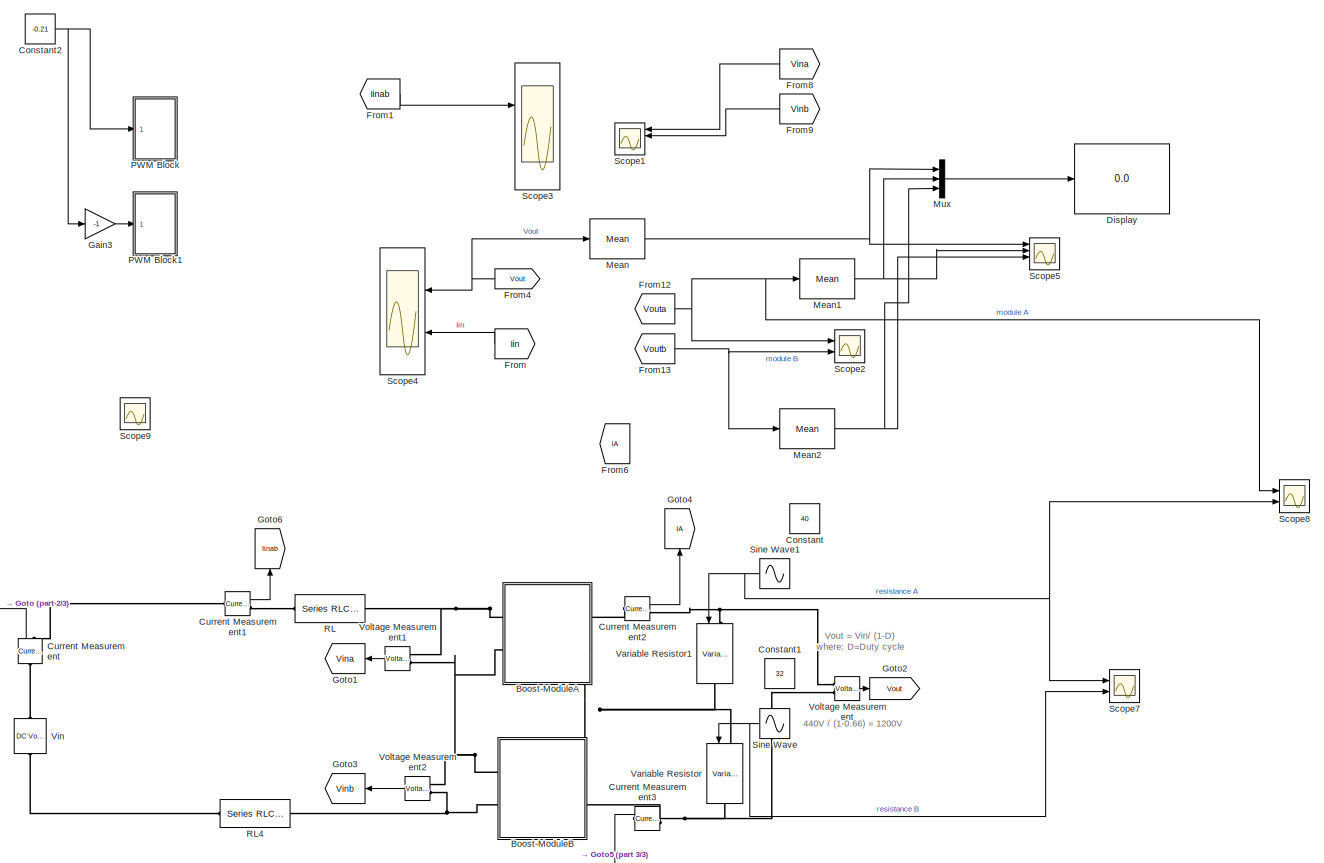
[diagram: root canvas - part 1/3, center side, full height]
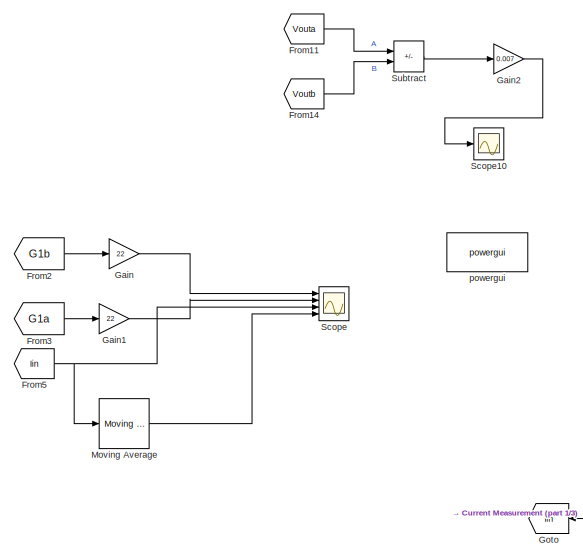
[diagram: root canvas - part 2/3, middle left region]
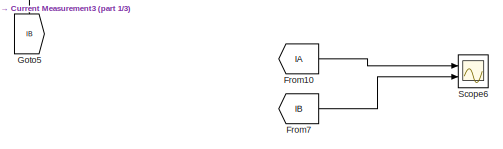
[diagram: root canvas - part 3/3, bottom right region]
MODEL slx_f2319887cfd7
KIND model
CONFIG AbsTol = auto
CONFIG EnableMultiTasking = on
CONFIG FixedStep = sampleTime
CONFIG InitFcn = unbalance_boost
CONFIG MaxStep = 1e-4
CONFIG MinStep = auto
CONFIG RelTol = 1e-4
CONFIG SampleTimeConstraint = Unconstrained
CONFIG SolverName = FixedStepDiscrete
CONFIG StartTime = 0.0
CONFIG StopTime = 0.2
WORKSPACE source: mxarray member
WORKSPACE Phase1 = 0
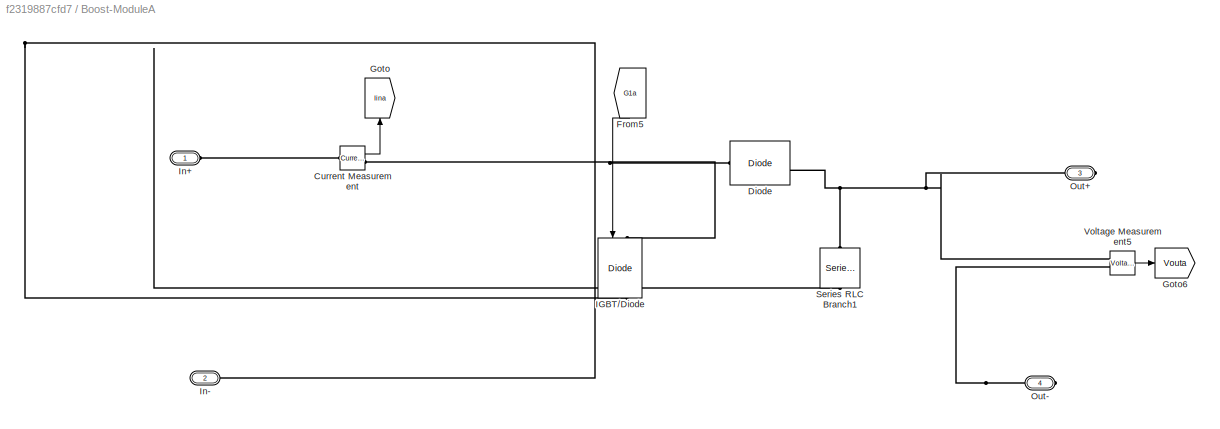
BLOCK [SubSystem] Boost-ModuleA
  Ports = [0, 0, 0, 0, 0, 2, 2]
  RequestExecContextInheritance = off
BLOCK [Reference] Boost-ModuleA/Current Measurement  REF=spsCurrentMeasurementLib/Current Measurement
  Ports = [0, 1, 0, 0, 0, 1, 1]
  SourceBlock = spsCurrentMeasurementLib/Current Measurement
  SourceProductBaseCode = PS
  SourceType = Current Measurement
  UserDataPersistent = on
BLOCK [Reference] Boost-ModuleA/Diode  REF=spsDiodeLib/Diode
  Ports = [0, 1, 0, 0, 0, 1, 1]
  SourceBlock = spsDiodeLib/Diode
  SourceProductBaseCode = PS
  SourceType = Diode
BLOCK [From] Boost-ModuleA/From5
  GotoTag = G1a
  NameLocation = left
  TagVisibility = global
BLOCK [Goto] Boost-ModuleA/Goto
  GotoTag = Iina
  NameLocation = right
  TagVisibility = global
BLOCK [Goto] Boost-ModuleA/Goto6
  GotoTag = Vouta
  NameLocation = top
  TagVisibility = global
BLOCK [Reference] Boost-ModuleA/IGBT//Diode  REF=spsIGBTDiodeLib/IGBT//Diode
  NameLocation = left
  Ports = [1, 1, 0, 0, 0, 1, 1]
  SourceBlock = spsIGBTDiodeLib/IGBT//Diode
  SourceProductBaseCode = PS
  SourceType = IGBT/Diode
BLOCK [PMIOPort] Boost-ModuleA/In+
  Side = Left
BLOCK [PMIOPort] Boost-ModuleA/In-
  Port = 2
  Side = Left
BLOCK [PMIOPort] Boost-ModuleA/Out+
  NameLocation = top
  Port = 3
  Side = Right
BLOCK [PMIOPort] Boost-ModuleA/Out-
  NameLocation = top
  Port = 4
  Side = Right
BLOCK [Reference] Boost-ModuleA/Series RLC Branch1  REF=spsSeriesRLCBranchLib/Series RLC Branch
  NameLocation = left
  Ports = [0, 0, 0, 0, 0, 1, 1]
  SourceBlock = spsSeriesRLCBranchLib/Series RLC Branch
  SourceProductBaseCode = PS
  SourceType = Series RLC Branch
BLOCK [Reference] Boost-ModuleA/Voltage Measurement5  REF=spsVoltageMeasurementLib/Voltage Measurement
  Ports = [0, 1, 0, 0, 0, 2]
  SourceBlock = spsVoltageMeasurementLib/Voltage Measurement
  SourceProductBaseCode = PS
  SourceType = Voltage Measurement
  UserDataPersistent = on
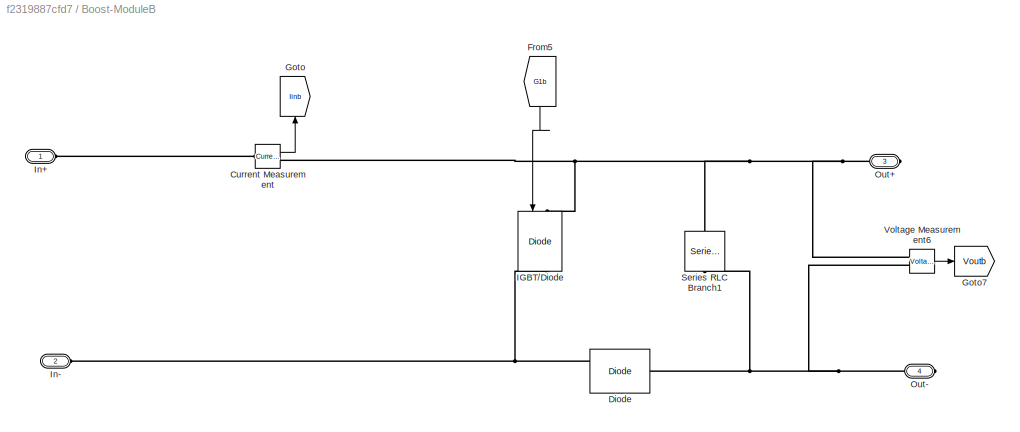
BLOCK [SubSystem] Boost-ModuleB
  Ports = [0, 0, 0, 0, 0, 2, 2]
  RequestExecContextInheritance = off
BLOCK [Reference] Boost-ModuleB/Current Measurement  REF=spsCurrentMeasurementLib/Current Measurement
  Ports = [0, 1, 0, 0, 0, 1, 1]
  SourceBlock = spsCurrentMeasurementLib/Current Measurement
  SourceProductBaseCode = PS
  SourceType = Current Measurement
  UserDataPersistent = on
BLOCK [Reference] Boost-ModuleB/Diode  REF=spsDiodeLib/Diode
  NameLocation = top
  Ports = [0, 1, 0, 0, 0, 1, 1]
  SourceBlock = spsDiodeLib/Diode
  SourceProductBaseCode = PS
  SourceType = Diode
BLOCK [From] Boost-ModuleB/From5
  GotoTag = G1b
  NameLocation = left
  TagVisibility = global
BLOCK [Goto] Boost-ModuleB/Goto
  GotoTag = Iinb
  NameLocation = right
  TagVisibility = global
BLOCK [Goto] Boost-ModuleB/Goto7
  GotoTag = Voutb
  NameLocation = top
  TagVisibility = global
BLOCK [Reference] Boost-ModuleB/IGBT//Diode  REF=spsIGBTDiodeLib/IGBT//Diode
  NameLocation = left
  Ports = [1, 1, 0, 0, 0, 1, 1]
  SourceBlock = spsIGBTDiodeLib/IGBT//Diode
  SourceProductBaseCode = PS
  SourceType = IGBT/Diode
BLOCK [PMIOPort] Boost-ModuleB/In+
  Side = Left
BLOCK [PMIOPort] Boost-ModuleB/In-
  Port = 2
  Side = Left
BLOCK [PMIOPort] Boost-ModuleB/Out+
  NameLocation = top
  Port = 3
  Side = Right
BLOCK [PMIOPort] Boost-ModuleB/Out-
  NameLocation = top
  Port = 4
  Side = Right
BLOCK [Reference] Boost-ModuleB/Series RLC Branch1  REF=spsSeriesRLCBranchLib/Series RLC Branch
  NameLocation = left
  Ports = [0, 0, 0, 0, 0, 1, 1]
  SourceBlock = spsSeriesRLCBranchLib/Series RLC Branch
  SourceProductBaseCode = PS
  SourceType = Series RLC Branch
BLOCK [Reference] Boost-ModuleB/Voltage Measurement6  REF=spsVoltageMeasurementLib/Voltage Measurement
  Ports = [0, 1, 0, 0, 0, 2]
  SourceBlock = spsVoltageMeasurementLib/Voltage Measurement
  SourceProductBaseCode = PS
  SourceType = Voltage Measurement
  UserDataPersistent = on
BLOCK [Constant] Constant
  NameLocation = top
  Value = 40
BLOCK [Constant] Constant1
  NameLocation = top
  Value = 32
BLOCK [Constant] Constant2
  Value = -0.21
BLOCK [Reference] Current Measurement  REF=spsCurrentMeasurementLib/Current Measurement
  NameLocation = right
  Ports = [0, 1, 0, 0, 0, 1, 1]
  SourceBlock = spsCurrentMeasurementLib/Current Measurement
  SourceProductBaseCode = PS
  SourceType = Current Measurement
  UserDataPersistent = on
BLOCK [Reference] Current Measurement1  REF=spsCurrentMeasurementLib/Current Measurement
  Ports = [0, 1, 0, 0, 0, 1, 1]
  SourceBlock = spsCurrentMeasurementLib/Current Measurement
  SourceProductBaseCode = PS
  SourceType = Current Measurement
  UserDataPersistent = on
BLOCK [Reference] Current Measurement2  REF=spsCurrentMeasurementLib/Current Measurement
  Ports = [0, 1, 0, 0, 0, 1, 1]
  SourceBlock = spsCurrentMeasurementLib/Current Measurement
  SourceProductBaseCode = PS
  SourceType = Current Measurement
  UserDataPersistent = on
BLOCK [Reference] Current Measurement3  REF=spsCurrentMeasurementLib/Current Measurement
  NameLocation = top
  Ports = [0, 1, 0, 0, 0, 1, 1]
  SourceBlock = spsCurrentMeasurementLib/Current Measurement
  SourceProductBaseCode = PS
  SourceType = Current Measurement
  UserDataPersistent = on
BLOCK [Display] Display
  Decimation = 1
  Ports = [1]
BLOCK [From] From
  GotoTag = Iin
BLOCK [From] From1
  GotoTag = Iinab
BLOCK [From] From10
  GotoTag = IA
BLOCK [From] From11
  GotoTag = Vouta
  TagVisibility = global
BLOCK [From] From12
  GotoTag = Vouta
  TagVisibility = global
BLOCK [From] From13
  GotoTag = Voutb
  TagVisibility = global
BLOCK [From] From14
  GotoTag = Voutb
  TagVisibility = global
BLOCK [From] From2
  GotoTag = G1b
  TagVisibility = global
BLOCK [From] From3
  GotoTag = G1a
  TagVisibility = global
BLOCK [From] From4
  GotoTag = Vout
  NameLocation = top
BLOCK [From] From5
  GotoTag = Iin
  NameLocation = top
BLOCK [From] From6
  GotoTag = IA
  NameLocation = right
BLOCK [From] From7
  GotoTag = IB
BLOCK [From] From8
  GotoTag = Vina
BLOCK [From] From9
  GotoTag = Vinb
BLOCK [Gain] Gain
  Gain = 22
BLOCK [Gain] Gain1
  Gain = 22
BLOCK [Gain] Gain2
  Gain = 0.007
BLOCK [Gain] Gain3
  Gain = -1
BLOCK [Goto] Goto
  GotoTag = Iin
  NameLocation = top
BLOCK [Goto] Goto1
  GotoTag = Vina
  NameLocation = top
BLOCK [Goto] Goto2
  GotoTag = Vout
BLOCK [Goto] Goto3
  GotoTag = Vinb
  NameLocation = top
BLOCK [Goto] Goto4
  GotoTag = IA
  NameLocation = right
BLOCK [Goto] Goto5
  GotoTag = IB
  NameLocation = left
BLOCK [Goto] Goto6
  GotoTag = Iinab
  NameLocation = right
BLOCK [Reference] Mean  REF=dspstat3/Mean
  Ports = [1, 1]
  SourceBlock = dspstat3/Mean
  SourceProductBaseCode = DS
  SourceType = Mean
  UserDataPersistent = on
BLOCK [Reference] Mean1  REF=dspstat3/Mean
  Ports = [1, 1]
  SourceBlock = dspstat3/Mean
  SourceProductBaseCode = DS
  SourceType = Mean
  UserDataPersistent = on
BLOCK [Reference] Mean2  REF=dspstat3/Mean
  Ports = [1, 1]
  SourceBlock = dspstat3/Mean
  SourceProductBaseCode = DS
  SourceType = Mean
  UserDataPersistent = on
BLOCK [Reference] Moving Average  REF=dspstat3/Moving
Average
  Ports = [1, 1]
  SourceBlock = dspstat3/Moving\nAverage
  SourceProductBaseCode = DS
  SourceType = dsp.simulink.MovingAverage
BLOCK [Mux] Mux
  DisplayOption = bar
  Inputs = 3
  Ports = [3, 1]
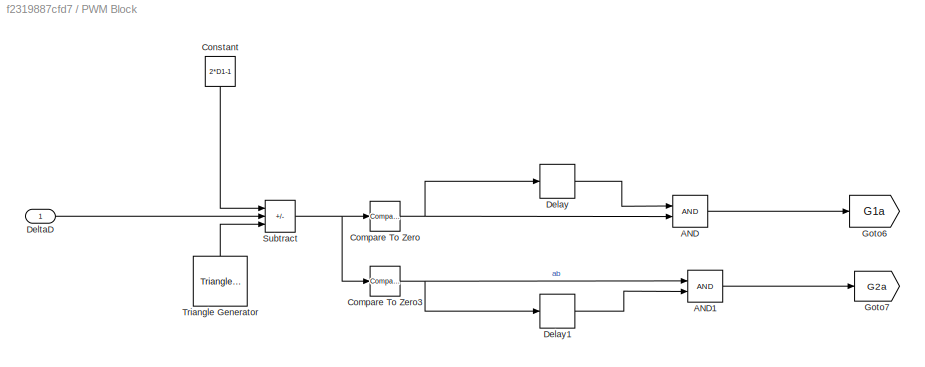
BLOCK [SubSystem] PWM Block
  Ports = [1]
  RequestExecContextInheritance = off
BLOCK [Logic] PWM Block/AND
  AllPortsSameDT = off
  IconShape = distinctive
  OutDataTypeStr = boolean
  Ports = [2, 1]
BLOCK [Logic] PWM Block/AND1
  AllPortsSameDT = off
  IconShape = distinctive
  OutDataTypeStr = boolean
  Ports = [2, 1]
BLOCK [Reference] PWM Block/Compare To Zero  REF=simulink/Logic and Bit
Operations/Compare
To Zero
  Ports = [1, 1]
  SourceBlock = simulink/Logic and Bit\nOperations/Compare\nTo Zero
  SourceProductBaseCode = SL
  SourceType = Compare To Zero
BLOCK [Reference] PWM Block/Compare To Zero3  REF=simulink/Logic and Bit
Operations/Compare
To Zero
  Ports = [1, 1]
  SourceBlock = simulink/Logic and Bit\nOperations/Compare\nTo Zero
  SourceProductBaseCode = SL
  SourceType = Compare To Zero
BLOCK [Constant] PWM Block/Constant
  NameLocation = left
  Value = 2*D1-1
BLOCK [Delay] PWM Block/Delay
  InputPortMap = u0
  Ports = [1, 1]
BLOCK [Delay] PWM Block/Delay1
  InputPortMap = u0
  Ports = [1, 1]
BLOCK [Inport] PWM Block/DeltaD
BLOCK [Goto] PWM Block/Goto6
  GotoTag = G1a
  TagVisibility = global
BLOCK [Goto] PWM Block/Goto7
  GotoTag = G2a
  TagVisibility = global
BLOCK [Sum] PWM Block/Subtract
  IconShape = rectangular
  Inputs = ++-
  Ports = [3, 1]
BLOCK [Reference] PWM Block/Triangle Generator  REF=spsTriangleGeneratorLib/Triangle
Generator
  NameLocation = right
  Ports = [0, 1]
  SourceBlock = spsTriangleGeneratorLib/Triangle\nGenerator
  SourceProductBaseCode = PS
  SourceType = Triangle Generator
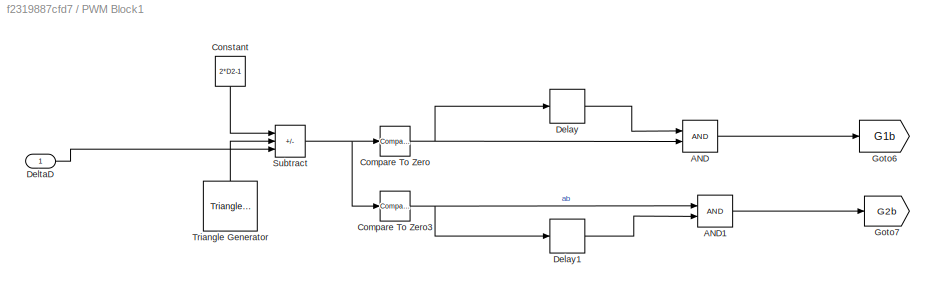
BLOCK [SubSystem] PWM Block1
  Ports = [1]
  RequestExecContextInheritance = off
BLOCK [Logic] PWM Block1/AND
  AllPortsSameDT = off
  IconShape = distinctive
  OutDataTypeStr = boolean
  Ports = [2, 1]
BLOCK [Logic] PWM Block1/AND1
  AllPortsSameDT = off
  IconShape = distinctive
  OutDataTypeStr = boolean
  Ports = [2, 1]
BLOCK [Reference] PWM Block1/Compare To Zero  REF=simulink/Logic and Bit
Operations/Compare
To Zero
  Ports = [1, 1]
  SourceBlock = simulink/Logic and Bit\nOperations/Compare\nTo Zero
  SourceProductBaseCode = SL
  SourceType = Compare To Zero
BLOCK [Reference] PWM Block1/Compare To Zero3  REF=simulink/Logic and Bit
Operations/Compare
To Zero
  Ports = [1, 1]
  SourceBlock = simulink/Logic and Bit\nOperations/Compare\nTo Zero
  SourceProductBaseCode = SL
  SourceType = Compare To Zero
BLOCK [Constant] PWM Block1/Constant
  NameLocation = left
  Value = 2*D2-1
BLOCK [Delay] PWM Block1/Delay
  InputPortMap = u0
  Ports = [1, 1]
BLOCK [Delay] PWM Block1/Delay1
  InputPortMap = u0
  Ports = [1, 1]
BLOCK [Inport] PWM Block1/DeltaD
BLOCK [Goto] PWM Block1/Goto6
  GotoTag = G1b
  TagVisibility = global
BLOCK [Goto] PWM Block1/Goto7
  GotoTag = G2b
  TagVisibility = global
BLOCK [Sum] PWM Block1/Subtract
  IconShape = rectangular
  Inputs = +-+
  Ports = [3, 1]
BLOCK [Reference] PWM Block1/Triangle Generator  REF=spsTriangleGeneratorLib/Triangle
Generator
  NameLocation = right
  Ports = [0, 1]
  SourceBlock = spsTriangleGeneratorLib/Triangle\nGenerator
  SourceProductBaseCode = PS
  SourceType = Triangle Generator
BLOCK [Reference] RL  REF=spsSeriesRLCBranchLib/Series RLC Branch
  Ports = [0, 0, 0, 0, 0, 1, 1]
  SourceBlock = spsSeriesRLCBranchLib/Series RLC Branch
  SourceProductBaseCode = PS
  SourceType = Series RLC Branch
BLOCK [Reference] RL4  REF=spsSeriesRLCBranchLib/Series RLC Branch
  Ports = [0, 0, 0, 0, 0, 1, 1]
  SourceBlock = spsSeriesRLCBranchLib/Series RLC Branch
  SourceProductBaseCode = PS
  SourceType = Series RLC Branch
BLOCK [Scope] Scope
  Floating = off
  NumInputPorts = 4
  Ports = [4]
  ScopeSpecificationString = Simulink.scopes.TimeScopeBlockCfg('CurrentConfiguration', extmgr.ConfigurationSet(extmgr.Configuration('Core','General UI',true,'FigureColor',[1 1 1]),extmgr.Configuration('Core','Source UI',true),extmgr.Configuration('Sources','WiredSimulink',true,'DataLoggingVariableName','ScopeData2'),extmgr.Configuration('Visuals','Time Domain',true,'SerializedDisplays',{struct('MinYLimReal','18.39239','MaxYLi...<+1922ch>
BLOCK [Scope] Scope1
  Floating = off
  NameLocation = top
  NumInputPorts = 4
  Ports = [4]
  ScopeSpecificationString = Simulink.scopes.TimeScopeBlockCfg('CurrentConfiguration', extmgr.ConfigurationSet(extmgr.Configuration('Core','General UI',true),extmgr.Configuration('Core','Source UI',true),extmgr.Configuration('Sources','WiredSimulink',true,'DataLoggingVariableName','ScopeData2'),extmgr.Configuration('Visuals','Time Domain',true,'SerializedDisplays',{struct('MinYLimReal','-51.89712','MaxYLimReal','705.97536','Y...<+1569ch>
BLOCK [Scope] Scope10
  Floating = off
  NumInputPorts = 1
  Ports = [1]
  ScopeSpecificationString = Simulink.scopes.TimeScopeBlockCfg('CurrentConfiguration', extmgr.ConfigurationSet(extmgr.Configuration('Core','General UI',true),extmgr.Configuration('Core','Source UI',true),extmgr.Configuration('Sources','WiredSimulink',true,'DataLoggingVariableName','ScopeData1'),extmgr.Configuration('Visuals','Time Domain',true,'SerializedDisplays',{struct('MinYLimReal','-0.26643','MaxYLimReal','-0.16689','YLa...<+1385ch>
BLOCK [Scope] Scope2
  Floating = off
  NumInputPorts = 2
  Ports = [2]
  ScopeSpecificationString = Simulink.scopes.TimeScopeBlockCfg('CurrentConfiguration', extmgr.ConfigurationSet(extmgr.Configuration('Core','General UI',true,'FigureColor',[1 1 1]),extmgr.Configuration('Core','Source UI',true),extmgr.Configuration('Sources','WiredSimulink',true,'DataLoggingVariableName','ScopeData3','DataLogging',true),extmgr.Configuration('Visuals','Time Domain',true,'SerializedDisplays',{struct('MinYLimReal'...<+1864ch>
BLOCK [Scope] Scope3
  Floating = off
  NumInputPorts = 2
  Ports = [2]
  ScopeSpecificationString = Simulink.scopes.TimeScopeBlockCfg('CurrentConfiguration', extmgr.ConfigurationSet(extmgr.Configuration('Core','General UI',true),extmgr.Configuration('Core','Source UI',true),extmgr.Configuration('Sources','WiredSimulink',true,'DataLoggingVariableName','ScopeData4'),extmgr.Configuration('Visuals','Time Domain',true,'SerializedDisplays',{struct('MinYLimReal','6.30952','MaxYLimReal','15.80744','YLab...<+2064ch>
BLOCK [Scope] Scope4
  Floating = off
  NameLocation = top
  NumInputPorts = 2
  Ports = [2]
  ScopeSpecificationString = Simulink.scopes.TimeScopeBlockCfg('CurrentConfiguration', extmgr.ConfigurationSet(extmgr.Configuration('Core','General UI',true,'FigureColor',[1 1 1]),extmgr.Configuration('Core','Source UI',true),extmgr.Configuration('Sources','WiredSimulink',true),extmgr.Configuration('Visuals','Time Domain',true,'SerializedDisplays',{struct('MinYLimReal','1176.83821','MaxYLimReal','1201.31285','YLabelReal','Vol...<+2236ch>
BLOCK [Scope] Scope5
  Floating = off
  NumInputPorts = 4
  Ports = [4]
  ScopeSpecificationString = Simulink.scopes.TimeScopeBlockCfg('CurrentConfiguration', extmgr.ConfigurationSet(extmgr.Configuration('Core','General UI',true),extmgr.Configuration('Core','Source UI',true),extmgr.Configuration('Sources','WiredSimulink',true,'DataLoggingVariableName','ScopeData1'),extmgr.Configuration('Visuals','Time Domain',true,'SerializedDisplays',{struct('MinYLimReal','-205.15338','MaxYLimReal','1846.38045',...<+1579ch>
BLOCK [Scope] Scope6
  Floating = off
  NumInputPorts = 2
  Ports = [2]
  ScopeSpecificationString = Simulink.scopes.TimeScopeBlockCfg('CurrentConfiguration', extmgr.ConfigurationSet(extmgr.Configuration('Core','General UI',true),extmgr.Configuration('Core','Source UI',true),extmgr.Configuration('Sources','WiredSimulink',true,'DataLoggingVariableName','ScopeData3'),extmgr.Configuration('Visuals','Time Domain',true,'SerializedDisplays',{struct('MinYLimReal','-4.32979','MaxYLimReal','39.06979','YLa...<+1844ch>
BLOCK [Scope] Scope7
  Floating = off
  NumInputPorts = 2
  Ports = [2]
  ScopeSpecificationString = Simulink.scopes.TimeScopeBlockCfg('CurrentConfiguration', extmgr.ConfigurationSet(extmgr.Configuration('Core','General UI',true,'FigureColor',[1 1 1]),extmgr.Configuration('Core','Source UI',true),extmgr.Configuration('Sources','WiredSimulink',true,'DataLoggingVariableName','ScopeData1'),extmgr.Configuration('Visuals','Time Domain',true,'SerializedDisplays',{struct('MinYLimReal','28.5','MaxYLimRea...<+1767ch>
BLOCK [Scope] Scope8
  Floating = off
  NumInputPorts = 2
  Ports = [2]
  ScopeSpecificationString = Simulink.scopes.TimeScopeBlockCfg('CurrentConfiguration', extmgr.ConfigurationSet(extmgr.Configuration('Core','General UI',true,'FigureColor',[1 1 1]),extmgr.Configuration('Core','Source UI',true),extmgr.Configuration('Sources','WiredSimulink',true,'DataLoggingVariableName','ScopeData2'),extmgr.Configuration('Visuals','Time Domain',true,'SerializedDisplays',{struct('MinYLimReal','581.07142','MaxYL...<+2398ch>
BLOCK [Scope] Scope9
  Floating = off
  NumInputPorts = 1
  Ports = [1]
  ScopeSpecificationString = Simulink.scopes.TimeScopeBlockCfg('CurrentConfiguration', extmgr.ConfigurationSet(extmgr.Configuration('Core','General UI',true),extmgr.Configuration('Core','Source UI',true),extmgr.Configuration('Sources','WiredSimulink',true,'DataLoggingVariableName','ScopeData3'),extmgr.Configuration('Visuals','Time Domain',true,'SerializedDisplays',{struct('MinYLimReal','-2.24767','MaxYLimReal','2.13829','YLab...<+1443ch>
BLOCK [Sin] Sine Wave
  Amplitude = 0
  Bias = 42
  Frequency = 150*2*pi
  NameLocation = top
  Ports = [0, 1]
  SampleTime = 0
BLOCK [Sin] Sine Wave1
  Amplitude = 0
  Bias = 30
  Frequency = 150*2*pi
  NameLocation = top
  Phase = pi
  Ports = [0, 1]
  SampleTime = 0
BLOCK [Sum] Subtract
  IconShape = rectangular
  Inputs = +-
  Ports = [2, 1]
BLOCK [Reference] Variable Resistor  REF=spsVariableResistorLib/Variable Resistor
  NameLocation = left
  Ports = [1, 0, 0, 0, 0, 1, 1]
  SourceBlock = spsVariableResistorLib/Variable Resistor
  SourceProductBaseCode = PS
  SourceType = Variable Resistor
BLOCK [Reference] Variable Resistor1  REF=spsVariableResistorLib/Variable Resistor
  NameLocation = left
  Ports = [1, 0, 0, 0, 0, 1, 1]
  SourceBlock = spsVariableResistorLib/Variable Resistor
  SourceProductBaseCode = PS
  SourceType = Variable Resistor
BLOCK [Reference] Vin     REF=spsDCVoltageSourceLib/DC Voltage Source
  NameLocation = left
  Ports = [0, 0, 0, 0, 0, 1, 1]
  SourceBlock = spsDCVoltageSourceLib/DC Voltage Source
  SourceProductBaseCode = PS
  SourceType = DC Voltage Source
BLOCK [Reference] Voltage Measurement  REF=spsVoltageMeasurementLib/Voltage Measurement
  Ports = [0, 1, 0, 0, 0, 2]
  SourceBlock = spsVoltageMeasurementLib/Voltage Measurement
  SourceProductBaseCode = PS
  SourceType = Voltage Measurement
  UserDataPersistent = on
BLOCK [Reference] Voltage Measurement1  REF=spsVoltageMeasurementLib/Voltage Measurement
  Ports = [0, 1, 0, 0, 0, 2]
  SourceBlock = spsVoltageMeasurementLib/Voltage Measurement
  SourceProductBaseCode = PS
  SourceType = Voltage Measurement
  UserDataPersistent = on
BLOCK [Reference] Voltage Measurement2  REF=spsVoltageMeasurementLib/Voltage Measurement
  Ports = [0, 1, 0, 0, 0, 2]
  SourceBlock = spsVoltageMeasurementLib/Voltage Measurement
  SourceProductBaseCode = PS
  SourceType = Voltage Measurement
  UserDataPersistent = on
BLOCK [Reference] powergui  REF=spspowerguiLib/powergui
  Ports = []
  Priority = 1
  SourceBlock = spspowerguiLib/powergui
  SourceProductBaseCode = PS
  SourceType = PSB option menu block
ANNOTATION (root): 440V / (1-0.66) = 1200V
ANNOTATION (root): Vout = Vin/ (1-D) where: D=Duty cycle
LINE Boost-ModuleA/Current Measurement:1 -> Boost-ModuleA/Goto:1
LINE Boost-ModuleA/From5:1 -> Boost-ModuleA/IGBT//Diode:1
LINE Boost-ModuleA/Voltage Measurement5:1 -> Boost-ModuleA/Goto6:1
LINE Boost-ModuleB/Current Measurement:1 -> Boost-ModuleB/Goto:1
LINE Boost-ModuleB/From5:1 -> Boost-ModuleB/IGBT//Diode:1
LINE Boost-ModuleB/Voltage Measurement6:1 -> Boost-ModuleB/Goto7:1
NET Constant2:1 -> Gain3:1, PWM Block:1
LINE Current Measurement1:1 -> Goto6:1
LINE Current Measurement2:1 -> Goto4:1
LINE Current Measurement3:1 -> Goto5:1
LINE Current Measurement:1 -> Goto:1
LINE From10:1 -> Scope6:1
LINE From11:1 -> Subtract:1
NET From12:1 -> Mean1:1, Scope2:1, Scope8:1
NET From13:1 -> Mean2:1, Scope2:2
LINE From14:1 -> Subtract:2
LINE From1:1 -> Scope3:1
LINE From2:1 -> Gain:1
LINE From3:1 -> Gain1:1
NET From4:1 -> Mean:1, Scope4:1
NET From5:1 -> Moving Average:1, Scope:3
LINE From7:1 -> Scope6:2
LINE From8:1 -> Scope1:1
LINE From9:1 -> Scope1:2
LINE From:1 -> Scope4:2
LINE Gain1:1 -> Scope:2
LINE Gain2:1 -> Scope10:1
LINE Gain3:1 -> PWM Block1:1
LINE Gain:1 -> Scope:1
NET Mean1:1 -> Mux:2, Scope5:2
NET Mean2:1 -> Mux:3, Scope5:3
NET Mean:1 -> Mux:1, Scope5:1
LINE Moving Average:1 -> Scope:4
LINE Mux:1 -> Display:1
LINE PWM Block/AND1:1 -> PWM Block/Goto7:1
LINE PWM Block/AND:1 -> PWM Block/Goto6:1
NET PWM Block/Compare To Zero3:1 -> PWM Block/AND1:1, PWM Block/Delay1:1
NET PWM Block/Compare To Zero:1 -> PWM Block/AND:2, PWM Block/Delay:1
LINE PWM Block/Constant:1 -> PWM Block/Subtract:1
LINE PWM Block/Delay1:1 -> PWM Block/AND1:2
LINE PWM Block/Delay:1 -> PWM Block/AND:1
LINE PWM Block/DeltaD:1 -> PWM Block/Subtract:2
NET PWM Block/Subtract:1 -> PWM Block/Compare To Zero3:1, PWM Block/Compare To Zero:1
LINE PWM Block/Triangle Generator:1 -> PWM Block/Subtract:3
LINE PWM Block1/AND1:1 -> PWM Block1/Goto7:1
LINE PWM Block1/AND:1 -> PWM Block1/Goto6:1
NET PWM Block1/Compare To Zero3:1 -> PWM Block1/AND1:1, PWM Block1/Delay1:1
NET PWM Block1/Compare To Zero:1 -> PWM Block1/AND:2, PWM Block1/Delay:1
LINE PWM Block1/Constant:1 -> PWM Block1/Subtract:1
LINE PWM Block1/Delay1:1 -> PWM Block1/AND1:2
LINE PWM Block1/Delay:1 -> PWM Block1/AND:1
LINE PWM Block1/DeltaD:1 -> PWM Block1/Subtract:3
NET PWM Block1/Subtract:1 -> PWM Block1/Compare To Zero3:1, PWM Block1/Compare To Zero:1
LINE PWM Block1/Triangle Generator:1 -> PWM Block1/Subtract:2
NET Sine Wave1:1 -> Scope7:1, Scope8:2, Variable Resistor1:1
NET Sine Wave:1 -> Scope7:2, Variable Resistor:1
LINE Subtract:1 -> Gain2:1
LINE Voltage Measurement1:1 -> Goto1:1
LINE Voltage Measurement2:1 -> Goto3:1
LINE Voltage Measurement:1 -> Goto2:1
PLINE Boost-ModuleA/Current Measurement:LConn1 -- Boost-ModuleA/In+:RConn1
PNET net1: Boost-ModuleA/Current Measurement:RConn1 -- Boost-ModuleA/Diode:LConn1 -- Boost-ModuleA/IGBT//Diode:LConn1
PNET net2: Boost-ModuleA/Diode:RConn1 -- Boost-ModuleA/Out+:RConn1 -- Boost-ModuleA/Series RLC Branch1:LConn1 -- Boost-ModuleA/Voltage Measurement5:LConn1
PNET net3: Boost-ModuleA/IGBT//Diode:RConn1 -- Boost-ModuleA/In-:RConn1 -- Boost-ModuleA/Out-:RConn1 -- Boost-ModuleA/Series RLC Branch1:RConn1 -- Boost-ModuleA/Voltage Measurement5:LConn2
PNET net4: Boost-ModuleA:LConn1 -- RL:RConn1 -- Voltage Measurement1:LConn1
PNET net5: Boost-ModuleA:LConn2 -- Boost-ModuleB:LConn1 -- Voltage Measurement1:LConn2 -- Voltage Measurement2:LConn1
PLINE Boost-ModuleA:RConn1 -- Current Measurement2:LConn1
PNET net6: Boost-ModuleA:RConn2 -- Boost-ModuleB:RConn1 -- Variable Resistor1:RConn1 -- Variable Resistor:LConn1
PLINE Boost-ModuleB/Current Measurement:LConn1 -- Boost-ModuleB/In+:RConn1
PNET net7: Boost-ModuleB/Current Measurement:RConn1 -- Boost-ModuleB/IGBT//Diode:LConn1 -- Boost-ModuleB/Out+:RConn1 -- Boost-ModuleB/Series RLC Branch1:LConn1 -- Boost-ModuleB/Voltage Measurement6:LConn1
PNET net8: Boost-ModuleB/Diode:LConn1 -- Boost-ModuleB/Out-:RConn1 -- Boost-ModuleB/Series RLC Branch1:RConn1 -- Boost-ModuleB/Voltage Measurement6:LConn2
PNET net9: Boost-ModuleB/Diode:RConn1 -- Boost-ModuleB/IGBT//Diode:RConn1 -- Boost-ModuleB/In-:RConn1
PNET net10: Boost-ModuleB:LConn2 -- RL4:RConn1 -- Voltage Measurement2:LConn2
PLINE Boost-ModuleB:RConn2 -- Current Measurement3:RConn1
PLINE Current Measurement1:LConn1 -- Current Measurement:RConn1
PLINE Current Measurement1:RConn1 -- RL:LConn1
PNET net11: Current Measurement2:RConn1 -- Variable Resistor1:LConn1 -- Voltage Measurement:LConn1
PNET net12: Current Measurement3:LConn1 -- Variable Resistor:RConn1 -- Voltage Measurement:LConn2
PLINE Current Measurement:LConn1 -- Vin   :RConn1
PLINE RL4:LConn1 -- Vin   :LConn1
note: NET lines group one-source signal fan-out (src -> all destinations, sorted); 1:1 wires keep LINE; PNET lines group multi-terminal physical nets as a canonical sorted terminal list (undirected conserving connections); 2-terminal nets keep the pairwise PLINE form
